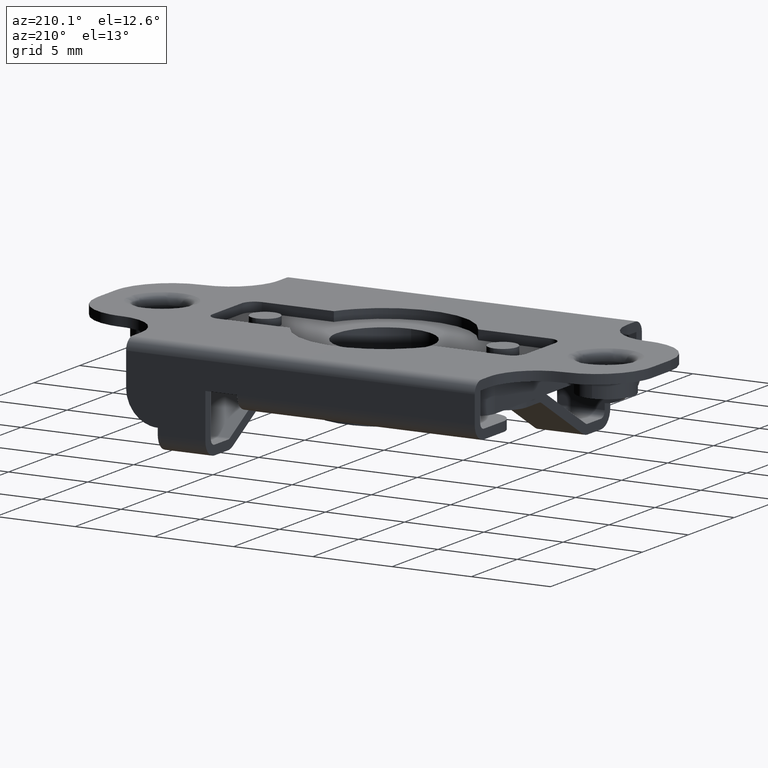
[diagram: clean part render]
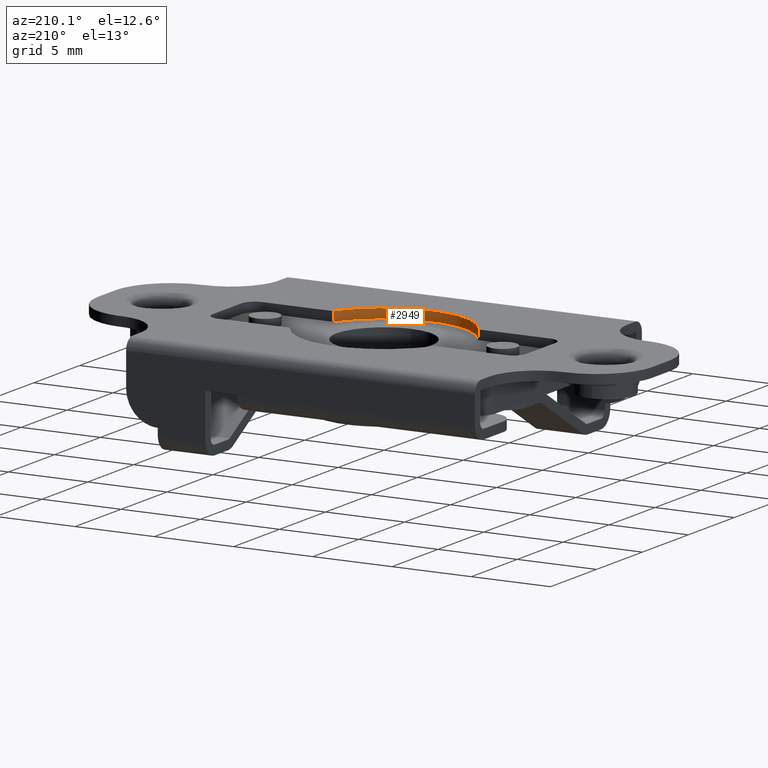
[diagram: same view with one face highlighted and labeled with its STEP entity id]
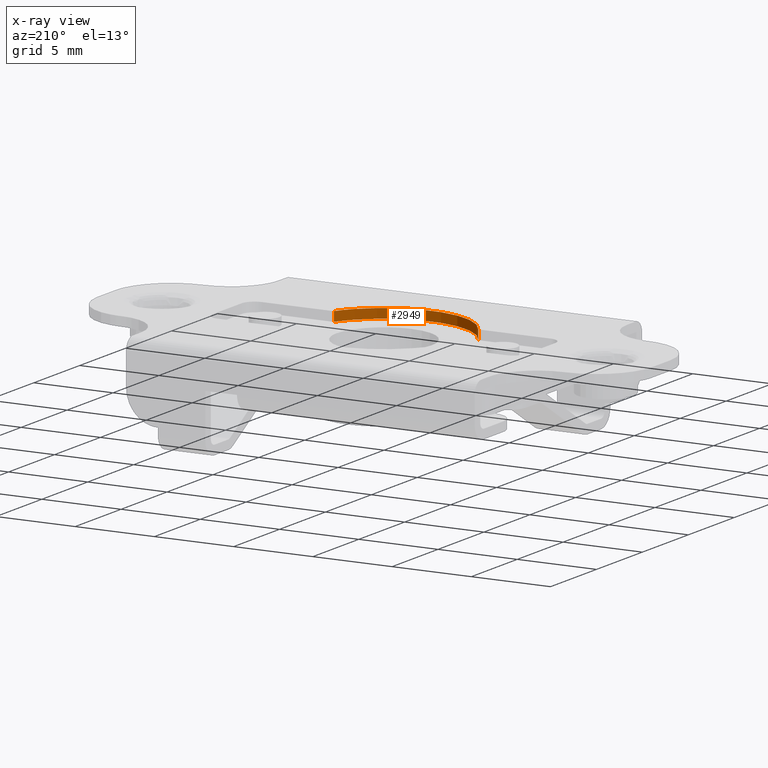
[diagram: x-ray of the same camera — body ghosted, the highlighted face saturated]
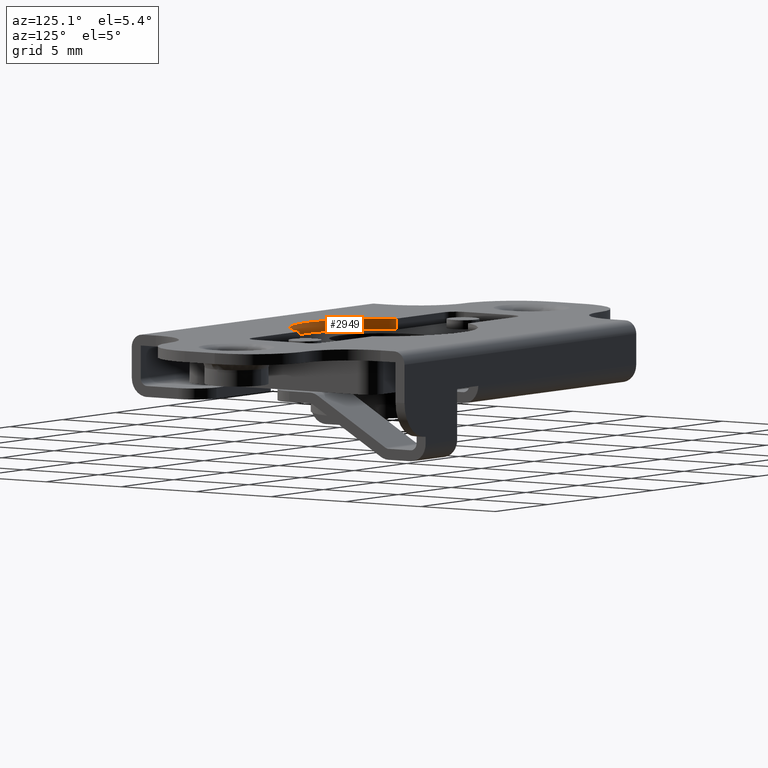
[diagram: same view with one face highlighted and labeled with its STEP entity id]
A machine part, auxiliary view. The second image highlights one B-rep face of the part: STEP entity #2949.
The next image is the same camera in x-ray: the body ghosted, the highlighted face saturated — about 0% of this face is hidden behind the body in this view.
A second angle (auxiliary view) of the same face is appended — the face is thin or edge-on in the first view.
In plain terms, the highlighted face is a freeform B-spline surface patch.
Its self-contained STEP definition (entity closure, byte-faithful):
#2596=CARTESIAN_POINT('',(-4.556588636249810,-2.399999999999890,-0.600000000000045));
#2597=VERTEX_POINT('',#2596);
#2603=CARTESIAN_POINT('',(4.556588636249660,-2.399999999999945,-0.600000000000045));
#2604=VERTEX_POINT('',#2603);
#2605=CARTESIAN_POINT('',(-4.556588636249810,-2.399999999999890,-0.600000000000045));
#2606=CARTESIAN_POINT('',(-4.414077720365720,-2.670635408941585,-0.600000000000045));
#2607=CARTESIAN_POINT('',(-4.152064390458989,-3.075852606160325,-0.600000000000047));
#2608=CARTESIAN_POINT('',(-3.665068900775558,-3.638028386173362,-0.600000000000040));
#2609=CARTESIAN_POINT('',(-3.153320325835168,-4.095707993047263,-0.600000000000052));
#2610=CARTESIAN_POINT('',(-2.543044599310748,-4.496561562925478,-0.600000000000040));
#2611=CARTESIAN_POINT('',(-1.924030867180812,-4.792096210909778,-0.600000000000053));
#2612=CARTESIAN_POINT('',(-1.244792883785033,-5.015820163556041,-0.600000000000031));
#2613=CARTESIAN_POINT('',(-0.582775262568306,-5.132135429503436,-0.600000000000053));
#2614=CARTESIAN_POINT('',(0.131190938165399,-5.162438478948114,-0.600000000000040));
#2615=CARTESIAN_POINT('',(0.858934436266222,-5.100566809979397,-0.600000000000048));
#2616=CARTESIAN_POINT('',(1.667042793543492,-4.897617922845290,-0.600000000000044));
#2617=CARTESIAN_POINT('',(2.457209813656765,-4.552784485494647,-0.600000000000042));
#2618=CARTESIAN_POINT('',(3.155544250801599,-4.098298405459949,-0.600000000000045));
#2619=CARTESIAN_POINT('',(3.739029208681342,-3.567487725940442,-0.600000000000048));
#2620=CARTESIAN_POINT('',(4.202751542424887,-3.003790614114905,-0.600000000000045));
#2621=CARTESIAN_POINT('',(4.447995162308282,-2.606191762102742,-0.600000000000035));
#2622=CARTESIAN_POINT('',(4.556588636249660,-2.399999999999945,-0.600000000000045));
#2623=B_SPLINE_CURVE_WITH_KNOTS('',3,(#2605,#2606,#2607,#2608,#2609,#2610,#2611,#2612,#2613,#2614,#2615,#2616,#2617,#2618,#2619,#2620,#2621,#2622),.UNSPECIFIED.,.F.,.U.,(4,1,1,1,1,1,1,1,1,1,1,1,1,1,1,4),(0.000000034417566,0.917587944375452,1.441927521235803,2.228446688529669,2.971264928230237,3.626696904698839,4.282120498688800,5.112327542762344,5.636651188660512,6.423167082947009,7.297066852071259,8.127281072263155,9.001187313150725,9.787703477466049,10.486814754944390,11.185935386124170),.UNSPECIFIED.);
#2624=EDGE_CURVE('',#2597,#2604,#2623,.T.);
#2887=CARTESIAN_POINT('',(4.556588636249660,-2.399999999999945,0.0));
#2888=VERTEX_POINT('',#2887);
#2896=CARTESIAN_POINT('',(4.556588636249660,-2.399999999999945,-0.600000000000045));
#2897=CARTESIAN_POINT('',(4.556588636249660,-2.399999999999945,0.0));
#2898=QUASI_UNIFORM_CURVE('',1,(#2896,#2897),.UNSPECIFIED.,.F.,.U.);
#2899=EDGE_CURVE('',#2604,#2888,#2898,.T.);
#2904=CARTESIAN_POINT('',(4.639619216174738,-2.235270348056652,-0.615000000000046));
#2905=CARTESIAN_POINT('',(4.639619216174738,-2.235270348056652,0.015375000000001));
#2906=CARTESIAN_POINT('',(-0.265233907647157,-12.415985546817215,-0.615000000000046));
#2907=CARTESIAN_POINT('',(-0.265233907647157,-12.415985546817215,0.015375000000001));
#2908=CARTESIAN_POINT('',(-4.730844023915684,-2.035095776955485,-0.615000000000046));
#2909=CARTESIAN_POINT('',(-4.730844023915684,-2.035095776955485,0.015375000000001));
#2917=(BOUNDED_SURFACE()B_SPLINE_SURFACE(1,2,((#2904,#2906,#2908),(#2905,#2907,#2909)),.UNSPECIFIED.,.F.,.F.,.U.)B_SPLINE_SURFACE_WITH_KNOTS((2,2),(3,3),(0.0,1.0),(0.0,13.250365248695649),.UNSPECIFIED.)GEOMETRIC_REPRESENTATION_ITEM()RATIONAL_B_SPLINE_SURFACE(((1.0,0.414693242656239,1.0),(1.0,0.414693242656239,1.0)))REPRESENTATION_ITEM('')SURFACE());
#2918=CARTESIAN_POINT('',(-4.556588636249810,-2.399999999999890,0.0));
#2919=VERTEX_POINT('',#2918);
#2920=CARTESIAN_POINT('',(-4.556588636249810,-2.399999999999890,0.0));
#2921=CARTESIAN_POINT('',(-4.414074835267244,-2.670633147426964,0.0));
#2922=CARTESIAN_POINT('',(-4.088561472913849,-3.174102477897256,0.0));
#2923=CARTESIAN_POINT('',(-3.512024427324817,-3.795702903953679,0.0));
#2924=CARTESIAN_POINT('',(-2.800152713071474,-4.355152814008315,0.0));
#2925=CARTESIAN_POINT('',(-2.062672276013236,-4.746477545371399,0.0));
#2926=CARTESIAN_POINT('',(-1.244790012636852,-5.015814756142581,0.0));
#2927=CARTESIAN_POINT('',(-0.582775283248420,-5.132135460202893,0.0));
#2928=CARTESIAN_POINT('',(0.131190941338785,-5.162438474237248,0.0));
#2929=CARTESIAN_POINT('',(0.858934435546054,-5.100566811048481,0.0));
#2930=CARTESIAN_POINT('',(1.667042793742960,-4.897617922549181,0.0));
#2931=CARTESIAN_POINT('',(2.457209813595213,-4.552784485586023,0.0));
#2932=CARTESIAN_POINT('',(3.155544250818375,-4.098298405435044,0.0));
#2933=CARTESIAN_POINT('',(3.739029208679077,-3.567487725943807,0.0));
#2934=CARTESIAN_POINT('',(4.202751542424889,-3.003790614114904,0.0));
#2935=CARTESIAN_POINT('',(4.447995162308283,-2.606191762102743,0.0));
#2936=CARTESIAN_POINT('',(4.556588636249660,-2.399999999999945,0.0));
#2937=B_SPLINE_CURVE_WITH_KNOTS('',3,(#2920,#2921,#2922,#2923,#2924,#2925,#2926,#2927,#2928,#2929,#2930,#2931,#2932,#2933,#2934,#2935,#2936),.UNSPECIFIED.,.F.,.U.,(4,1,1,1,1,1,1,1,1,1,1,1,1,1,4),(0.000000034417566,0.917587944375452,1.791490141886778,2.534311859957201,3.626696904698839,4.282120498688800,5.112327542762344,5.636651188660512,6.423167082947009,7.297066852071259,8.127281072263155,9.001187313150725,9.787703477466049,10.486814754944390,11.185935386124170),.UNSPECIFIED.);
#2938=EDGE_CURVE('',#2919,#2888,#2937,.T.);
#2939=ORIENTED_EDGE('',*,*,#2938,.T.);
#2940=ORIENTED_EDGE('',*,*,#2899,.F.);
#2941=ORIENTED_EDGE('',*,*,#2624,.F.);
#2942=CARTESIAN_POINT('',(-4.556588636249810,-2.399999999999890,-0.600000000000045));
#2943=CARTESIAN_POINT('',(-4.556588636249810,-2.399999999999890,0.0));
#2944=QUASI_UNIFORM_CURVE('',1,(#2942,#2943),.UNSPECIFIED.,.F.,.U.);
#2945=EDGE_CURVE('',#2597,#2919,#2944,.T.);
#2946=ORIENTED_EDGE('',*,*,#2945,.T.);
#2947=EDGE_LOOP('',(#2939,#2940,#2941,#2946));
#2948=FACE_OUTER_BOUND('',#2947,.T.);
#2949=ADVANCED_FACE('',(#2948),#2917,.F.);